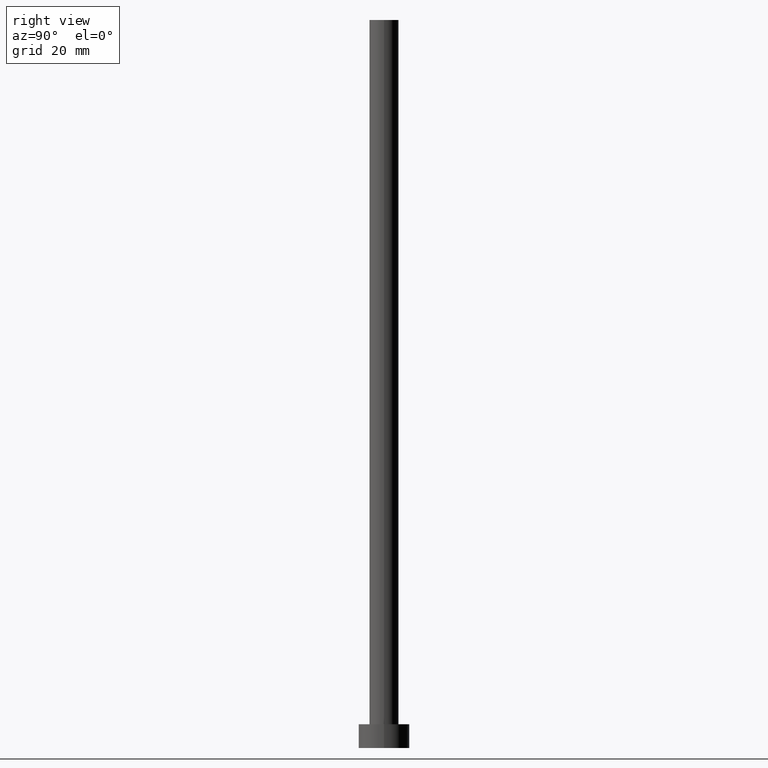
[diagram: clean part render]
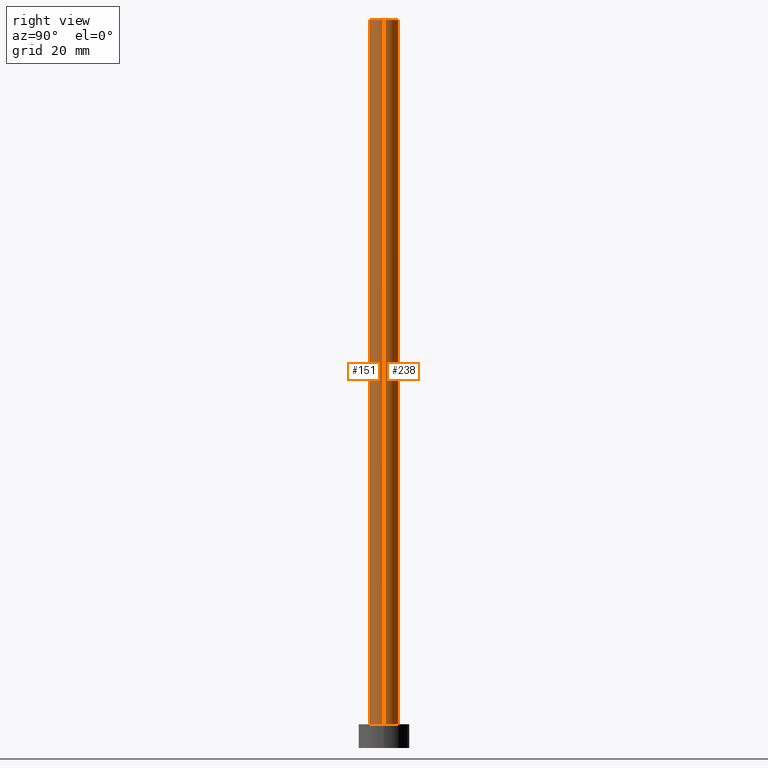
[diagram: same view with one multi-face feature highlighted, each face labeled with its STEP entity id]
A machine part, right view. The highlighted faces form ONE feature: a constant-radius fillet chain: 2 tangent blend faces with common blend radius 4 mm. The faces share edges in the B-rep.
Their STEP definitions:
[1] entity #151 (Cylinder):
#9 = CARTESIAN_POINT ( 'NONE',  ( 0.000000000000000000, 0.000000000000000000, 200.0000000000000000 ) ) ;
#15 = AXIS2_PLACEMENT_3D ( 'NONE', #9, #236, #223 ) ;
#21 = EDGE_CURVE ( 'NONE', #229, #186, #77, .T. ) ;
#26 = EDGE_CURVE ( 'NONE', #112, #186, #206, .T. ) ;
#29 = ORIENTED_EDGE ( 'NONE', *, *, #26, .F. ) ;
#33 = AXIS2_PLACEMENT_3D ( 'NONE', #221, #84, #240 ) ;
#35 = CIRCLE ( 'NONE', #33, 4.000000000000000000 ) ;
#36 = ORIENTED_EDGE ( 'NONE', *, *, #233, .F. ) ;
#40 = ORIENTED_EDGE ( 'NONE', *, *, #21, .T. ) ;
#41 = DIRECTION ( 'NONE',  ( 1.000000000000000000, 0.000000000000000000, 0.000000000000000000 ) ) ;
#61 = FACE_OUTER_BOUND ( 'NONE', #167, .T. ) ;
#62 = CARTESIAN_POINT ( 'NONE',  ( -4.000000000000000000, 0.000000000000000000, 6.500000000000000000 ) ) ;
#76 = CARTESIAN_POINT ( 'NONE',  ( -4.000000000000000000, 0.000000000000000000, 200.0000000000000000 ) ) ;
#77 = CIRCLE ( 'NONE', #150, 4.000000000000000000 ) ;
#84 = DIRECTION ( 'NONE',  ( 0.000000000000000000, 0.000000000000000000, 1.000000000000000000 ) ) ;
#102 = DIRECTION ( 'NONE',  ( -0.000000000000000000, -0.000000000000000000, -1.000000000000000000 ) ) ;
#103 = CARTESIAN_POINT ( 'NONE',  ( 4.000000000000000000, 4.898587196589412829E-16, 200.0000000000000000 ) ) ;
#107 = EDGE_CURVE ( 'NONE', #250, #229, #156, .T. ) ;
#112 = VERTEX_POINT ( 'NONE', #241 ) ;
#122 = CARTESIAN_POINT ( 'NONE',  ( 4.000000000000000000, 4.898587196589412829E-16, 6.500000000000000000 ) ) ;
#124 = DIRECTION ( 'NONE',  ( -0.000000000000000000, -0.000000000000000000, -1.000000000000000000 ) ) ;
#130 = VECTOR ( 'NONE', #124, 1000.000000000000000 ) ;
#141 = CYLINDRICAL_SURFACE ( 'NONE', #15, 4.000000000000000000 ) ;
#146 = ORIENTED_EDGE ( 'NONE', *, *, #107, .T. ) ;
#150 = AXIS2_PLACEMENT_3D ( 'NONE', #175, #253, #41 ) ;
#151 = ADVANCED_FACE ( 'NONE', ( #61 ), #141, .T. ) ;
#156 = LINE ( 'NONE', #198, #130 ) ;
#167 = EDGE_LOOP ( 'NONE', ( #29, #36, #146, #40 ) ) ;
#175 = CARTESIAN_POINT ( 'NONE',  ( 0.000000000000000000, 0.000000000000000000, 6.500000000000000000 ) ) ;
#186 = VERTEX_POINT ( 'NONE', #122 ) ;
#198 = CARTESIAN_POINT ( 'NONE',  ( -4.000000000000000000, 0.000000000000000000, 200.0000000000000000 ) ) ;
#206 = LINE ( 'NONE', #103, #217 ) ;
#217 = VECTOR ( 'NONE', #102, 1000.000000000000000 ) ;
#221 = CARTESIAN_POINT ( 'NONE',  ( 0.000000000000000000, 0.000000000000000000, 200.0000000000000000 ) ) ;
#223 = DIRECTION ( 'NONE',  ( -1.000000000000000000, 0.000000000000000000, 0.000000000000000000 ) ) ;
#229 = VERTEX_POINT ( 'NONE', #62 ) ;
#233 = EDGE_CURVE ( 'NONE', #250, #112, #35, .T. ) ;
#236 = DIRECTION ( 'NONE',  ( -0.000000000000000000, -0.000000000000000000, -1.000000000000000000 ) ) ;
#240 = DIRECTION ( 'NONE',  ( 1.000000000000000000, 0.000000000000000000, 0.000000000000000000 ) ) ;
#241 = CARTESIAN_POINT ( 'NONE',  ( 4.000000000000000000, 4.898587196589412829E-16, 200.0000000000000000 ) ) ;
#250 = VERTEX_POINT ( 'NONE', #76 ) ;
#253 = DIRECTION ( 'NONE',  ( 0.000000000000000000, 0.000000000000000000, 1.000000000000000000 ) ) ;
[2] entity #238 (Cylinder):
#5 = CIRCLE ( 'NONE', #173, 4.000000000000000000 ) ;
#10 = DIRECTION ( 'NONE',  ( 0.000000000000000000, 0.000000000000000000, 1.000000000000000000 ) ) ;
#26 = EDGE_CURVE ( 'NONE', #112, #186, #206, .T. ) ;
#30 = EDGE_CURVE ( 'NONE', #112, #250, #5, .T. ) ;
#38 = CARTESIAN_POINT ( 'NONE',  ( 0.000000000000000000, 0.000000000000000000, 200.0000000000000000 ) ) ;
#39 = DIRECTION ( 'NONE',  ( -1.000000000000000000, 0.000000000000000000, 0.000000000000000000 ) ) ;
#53 = ORIENTED_EDGE ( 'NONE', *, *, #30, .F. ) ;
#58 = CARTESIAN_POINT ( 'NONE',  ( 0.000000000000000000, 0.000000000000000000, 200.0000000000000000 ) ) ;
#62 = CARTESIAN_POINT ( 'NONE',  ( -4.000000000000000000, 0.000000000000000000, 6.500000000000000000 ) ) ;
#76 = CARTESIAN_POINT ( 'NONE',  ( -4.000000000000000000, 0.000000000000000000, 200.0000000000000000 ) ) ;
#78 = AXIS2_PLACEMENT_3D ( 'NONE', #58, #220, #39 ) ;
#90 = EDGE_LOOP ( 'NONE', ( #53, #135, #145, #212 ) ) ;
#102 = DIRECTION ( 'NONE',  ( -0.000000000000000000, -0.000000000000000000, -1.000000000000000000 ) ) ;
#103 = CARTESIAN_POINT ( 'NONE',  ( 4.000000000000000000, 4.898587196589412829E-16, 200.0000000000000000 ) ) ;
#107 = EDGE_CURVE ( 'NONE', #250, #229, #156, .T. ) ;
#112 = VERTEX_POINT ( 'NONE', #241 ) ;
#122 = CARTESIAN_POINT ( 'NONE',  ( 4.000000000000000000, 4.898587196589412829E-16, 6.500000000000000000 ) ) ;
#124 = DIRECTION ( 'NONE',  ( -0.000000000000000000, -0.000000000000000000, -1.000000000000000000 ) ) ;
#130 = VECTOR ( 'NONE', #124, 1000.000000000000000 ) ;
#135 = ORIENTED_EDGE ( 'NONE', *, *, #26, .T. ) ;
#138 = DIRECTION ( 'NONE',  ( 1.000000000000000000, 0.000000000000000000, 0.000000000000000000 ) ) ;
#145 = ORIENTED_EDGE ( 'NONE', *, *, #231, .T. ) ;
#156 = LINE ( 'NONE', #198, #130 ) ;
#159 = DIRECTION ( 'NONE',  ( 0.000000000000000000, 0.000000000000000000, 1.000000000000000000 ) ) ;
#173 = AXIS2_PLACEMENT_3D ( 'NONE', #38, #10, #239 ) ;
#176 = FACE_OUTER_BOUND ( 'NONE', #90, .T. ) ;
#186 = VERTEX_POINT ( 'NONE', #122 ) ;
#198 = CARTESIAN_POINT ( 'NONE',  ( -4.000000000000000000, 0.000000000000000000, 200.0000000000000000 ) ) ;
#199 = CYLINDRICAL_SURFACE ( 'NONE', #78, 4.000000000000000000 ) ;
#206 = LINE ( 'NONE', #103, #217 ) ;
#212 = ORIENTED_EDGE ( 'NONE', *, *, #107, .F. ) ;
#213 = AXIS2_PLACEMENT_3D ( 'NONE', #255, #159, #138 ) ;
#217 = VECTOR ( 'NONE', #102, 1000.000000000000000 ) ;
#220 = DIRECTION ( 'NONE',  ( -0.000000000000000000, -0.000000000000000000, -1.000000000000000000 ) ) ;
#229 = VERTEX_POINT ( 'NONE', #62 ) ;
#231 = EDGE_CURVE ( 'NONE', #186, #229, #252, .T. ) ;
#238 = ADVANCED_FACE ( 'NONE', ( #176 ), #199, .T. ) ;
#239 = DIRECTION ( 'NONE',  ( 1.000000000000000000, 0.000000000000000000, 0.000000000000000000 ) ) ;
#241 = CARTESIAN_POINT ( 'NONE',  ( 4.000000000000000000, 4.898587196589412829E-16, 200.0000000000000000 ) ) ;
#250 = VERTEX_POINT ( 'NONE', #76 ) ;
#252 = CIRCLE ( 'NONE', #213, 4.000000000000000000 ) ;
#255 = CARTESIAN_POINT ( 'NONE',  ( 0.000000000000000000, 0.000000000000000000, 6.500000000000000000 ) ) ;